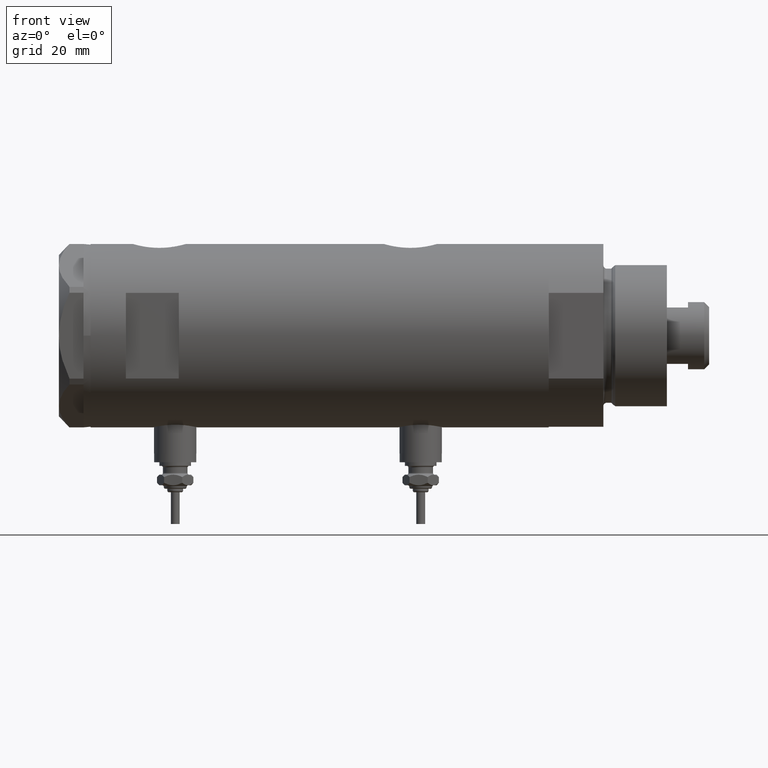
[diagram: clean part render]
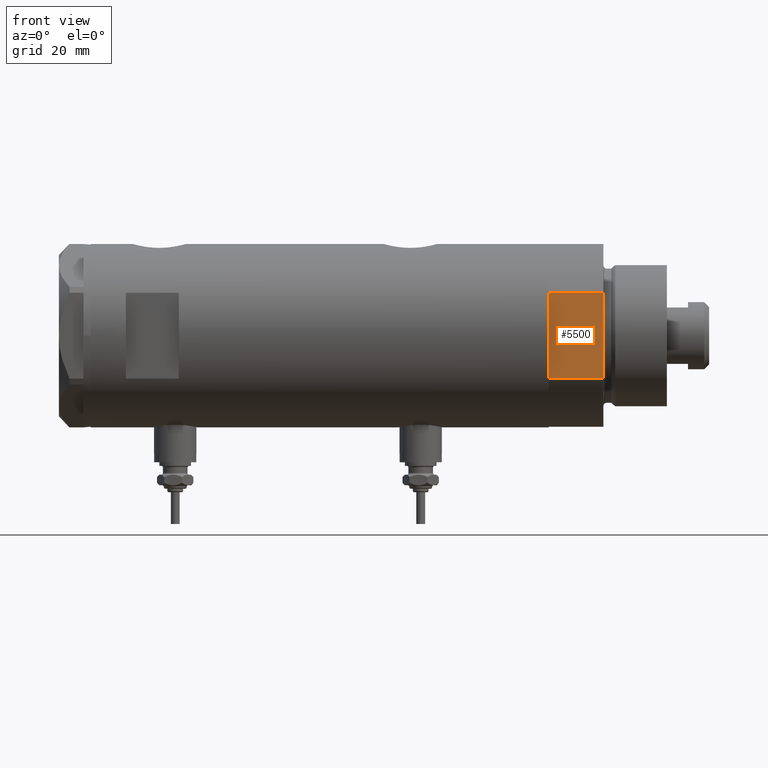
[diagram: same view with one face highlighted and labeled with its STEP entity id]
A machine part, front view. The second image highlights one B-rep face of the part: STEP entity #5500.
In plain terms, the highlighted planar face has unit normal (-0, 1, 0).
Its self-contained STEP definition (entity closure, byte-faithful):
#115 = DIRECTION ( 'NONE',  ( -0.000000000000000000, -0.000000000000000000, 1.000000000000000000 ) ) ;
#366 = CARTESIAN_POINT ( 'NONE',  ( 12.12435565298215323, -22.99999999999999645, 0.000000000000000000 ) ) ;
#498 = EDGE_CURVE ( 'NONE', #5891, #2142, #4670, .T. ) ;
#551 = VERTEX_POINT ( 'NONE', #4152 ) ;
#663 = LINE ( 'NONE', #702, #3570 ) ;
#702 = CARTESIAN_POINT ( 'NONE',  ( -12.12435565298215145, -22.99999999999999645, 0.000000000000000000 ) ) ;
#754 = FACE_OUTER_BOUND ( 'NONE', #1917, .T. ) ;
#1242 = DIRECTION ( 'NONE',  ( -0.000000000000000000, 1.000000000000000000, 0.000000000000000000 ) ) ;
#1709 = CARTESIAN_POINT ( 'NONE',  ( -12.12435565298215145, -22.99999999999999645, 0.000000000000000000 ) ) ;
#1892 = ORIENTED_EDGE ( 'NONE', *, *, #4817, .F. ) ;
#1917 = EDGE_LOOP ( 'NONE', ( #5556, #1892, #2714, #5996 ) ) ;
#1971 = VECTOR ( 'NONE', #3172, 1000.000000000000000 ) ;
#2142 = VERTEX_POINT ( 'NONE', #6210 ) ;
#2185 = LINE ( 'NONE', #366, #1971 ) ;
#2211 = CARTESIAN_POINT ( 'NONE',  ( 12.12435565298215323, -22.99999999999999645, 15.50000000000000000 ) ) ;
#2249 = DIRECTION ( 'NONE',  ( -1.000000000000000000, -0.000000000000000000, -0.000000000000000000 ) ) ;
#2285 = AXIS2_PLACEMENT_3D ( 'NONE', #1709, #1242, #3123 ) ;
#2298 = EDGE_CURVE ( 'NONE', #4921, #551, #5444, .T. ) ;
#2714 = ORIENTED_EDGE ( 'NONE', *, *, #498, .F. ) ;
#3123 = DIRECTION ( 'NONE',  ( 0.000000000000000000, -0.000000000000000000, 1.000000000000000000 ) ) ;
#3172 = DIRECTION ( 'NONE',  ( -0.000000000000000000, -0.000000000000000000, 1.000000000000000000 ) ) ;
#3174 = CARTESIAN_POINT ( 'NONE',  ( 12.12435565298215323, -22.99999999999999645, 0.000000000000000000 ) ) ;
#3570 = VECTOR ( 'NONE', #115, 1000.000000000000000 ) ;
#3918 = CARTESIAN_POINT ( 'NONE',  ( -12.12435565298215145, -22.99999999999999645, 15.50000000000000000 ) ) ;
#4152 = CARTESIAN_POINT ( 'NONE',  ( -12.12435565298215323, -22.99999999999999645, 15.50000000000000000 ) ) ;
#4451 = EDGE_CURVE ( 'NONE', #5891, #4921, #2185, .T. ) ;
#4586 = PLANE ( 'NONE',  #2285 ) ;
#4670 = LINE ( 'NONE', #4706, #5595 ) ;
#4706 = CARTESIAN_POINT ( 'NONE',  ( -12.12435565298215145, -22.99999999999999645, 0.000000000000000000 ) ) ;
#4817 = EDGE_CURVE ( 'NONE', #2142, #551, #663, .T. ) ;
#4921 = VERTEX_POINT ( 'NONE', #2211 ) ;
#5444 = LINE ( 'NONE', #3918, #6231 ) ;
#5500 = ADVANCED_FACE ( 'NONE', ( #754 ), #4586, .F. ) ;
#5556 = ORIENTED_EDGE ( 'NONE', *, *, #2298, .T. ) ;
#5595 = VECTOR ( 'NONE', #2249, 1000.000000000000000 ) ;
#5874 = DIRECTION ( 'NONE',  ( -1.000000000000000000, -0.000000000000000000, -0.000000000000000000 ) ) ;
#5891 = VERTEX_POINT ( 'NONE', #3174 ) ;
#5996 = ORIENTED_EDGE ( 'NONE', *, *, #4451, .T. ) ;
#6210 = CARTESIAN_POINT ( 'NONE',  ( -12.12435565298215501, -22.99999999999999645, 0.000000000000000000 ) ) ;
#6231 = VECTOR ( 'NONE', #5874, 1000.000000000000000 ) ;